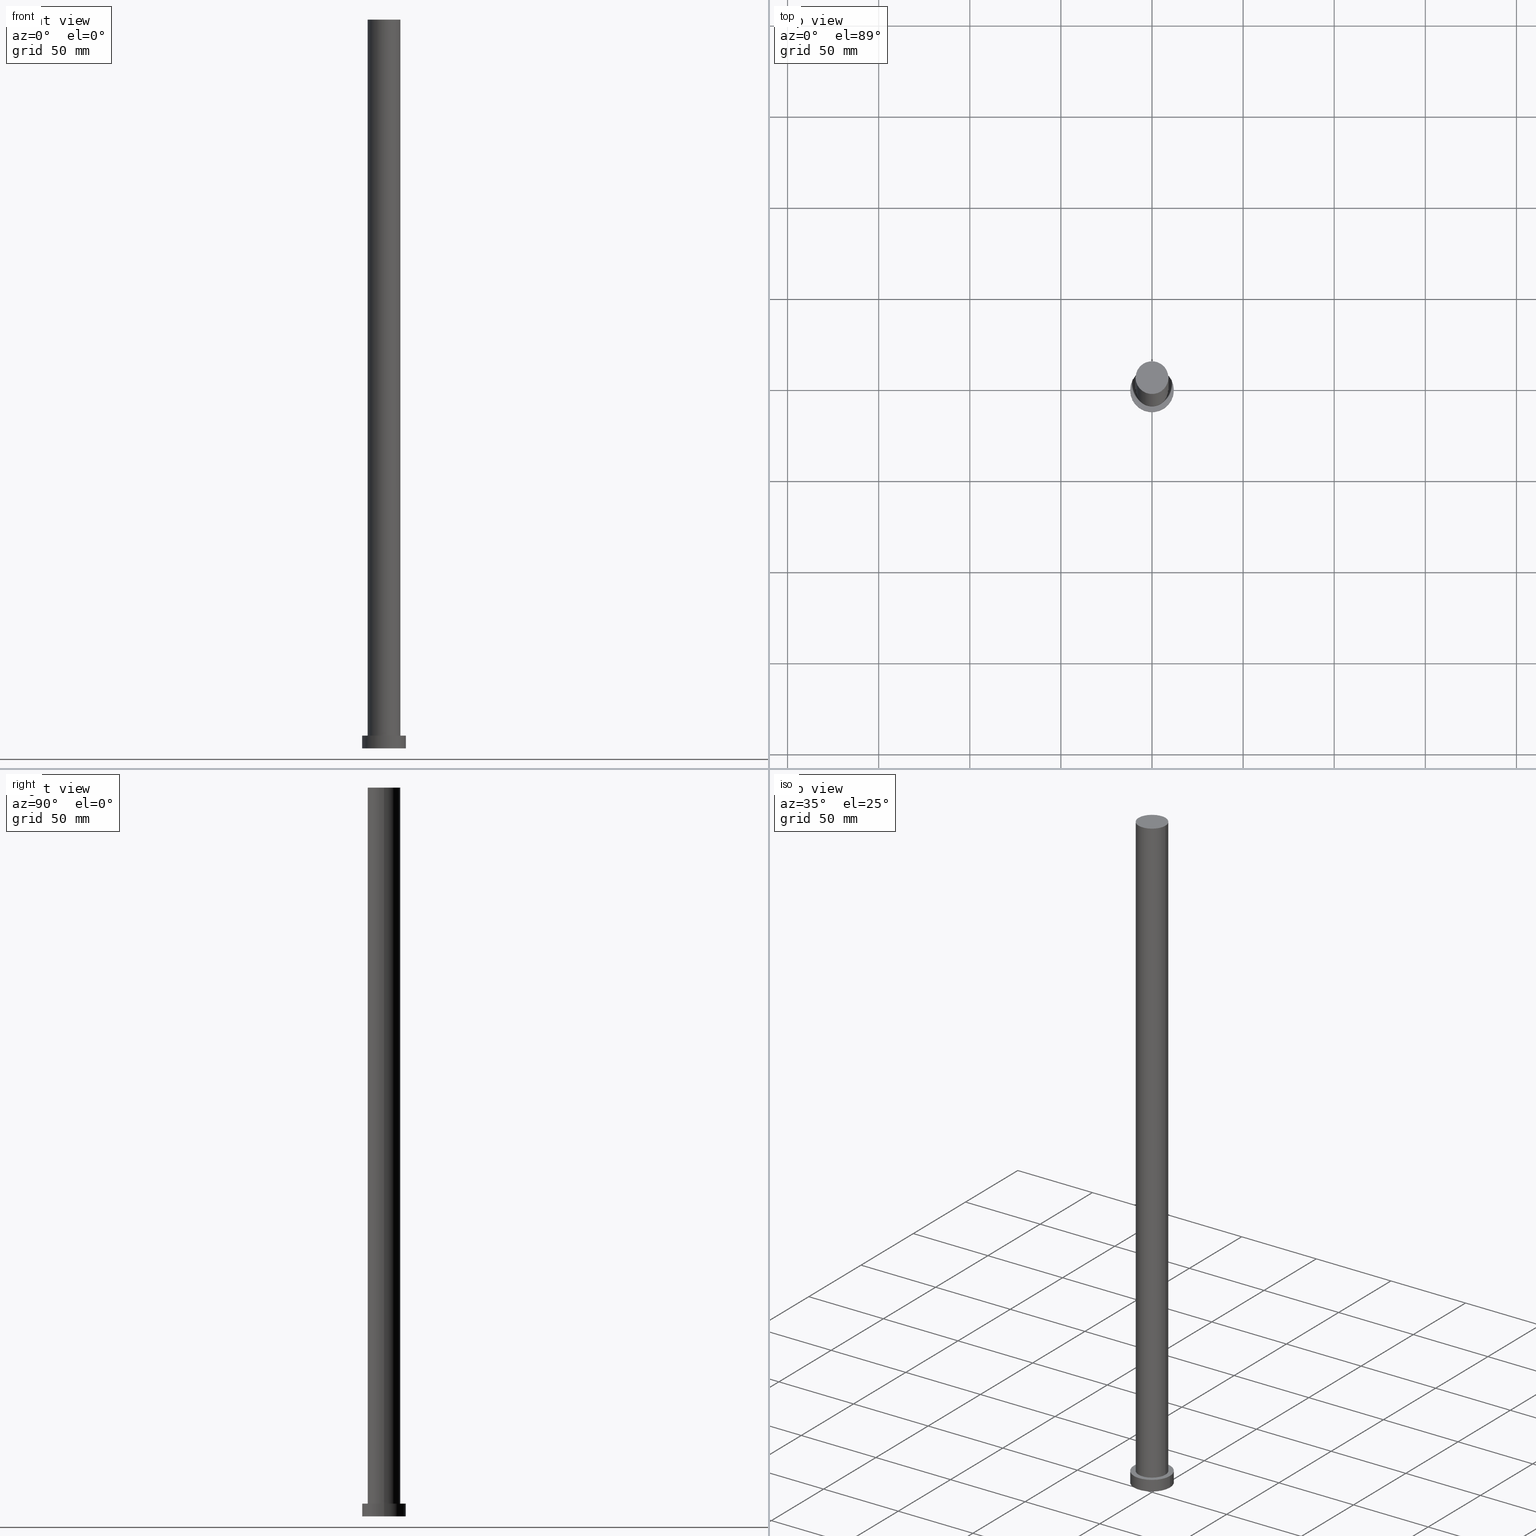
[diagram: canonical four-view strip — front | top / right | iso, engineering-drawing reading convention]
A machine part, canonical four-view strip (front | top / right | iso — engineering-drawing reading convention). The complete STEP part file that produces these views, byte-faithful:
ISO-10303-21;
HEADER;
FILE_DESCRIPTION (( 'STEP AP203' ),
    '1' );
FILE_NAME ('bf28.STEP',
    '2023-02-12T10:34:46',
    ( '' ),
    ( '' ),
    'SwSTEP 2.0',
    'SolidWorks 2019',
    '' );
FILE_SCHEMA (( 'CONFIG_CONTROL_DESIGN' ));
ENDSEC;

DATA;
#1 = ADVANCED_FACE ( 'NONE', ( #8, #108 ), #189, .T. ) ;
#2 = CARTESIAN_POINT ( 'NONE',  ( -9.000000000000000000, 0.000000000000000000, 400.0000000000000000 ) ) ;
#3 = CC_DESIGN_DATE_AND_TIME_ASSIGNMENT ( #157, #117, ( #70 ) ) ;
#4 = ORIENTED_EDGE ( 'NONE', *, *, #131, .T. ) ;
#5 = CIRCLE ( 'NONE', #94, 9.000000000000000000 ) ;
#6 = DIRECTION ( 'NONE',  ( -1.000000000000000000, 0.000000000000000000, 0.000000000000000000 ) ) ;
#7 = EDGE_LOOP ( 'NONE', ( #183, #130, #164, #83 ) ) ;
#8 = FACE_BOUND ( 'NONE', #122, .T. ) ;
#9 = EDGE_CURVE ( 'NONE', #193, #27, #165, .T. ) ;
#10 = CIRCLE ( 'NONE', #50, 9.000000000000000000 ) ;
#11 = CYLINDRICAL_SURFACE ( 'NONE', #232, 9.000000000000000000 ) ;
#12 = APPLICATION_CONTEXT ( 'configuration controlled 3d designs of mechanical parts and assemblies' ) ;
#13 = UNCERTAINTY_MEASURE_WITH_UNIT (LENGTH_MEASURE( 1.000000000000000082E-05 ), #111, 'distance_accuracy_value', 'NONE');
#14 = DIRECTION ( 'NONE',  ( -0.000000000000000000, -0.000000000000000000, -1.000000000000000000 ) ) ;
#15 = ORIENTED_EDGE ( 'NONE', *, *, #44, .T. ) ;
#16 = APPLICATION_PROTOCOL_DEFINITION ( 'international standard', 'config_control_design', 1994, #28 ) ;
#17 = ADVANCED_FACE ( 'NONE', ( #170 ), #247, .T. ) ;
#18 = AXIS2_PLACEMENT_3D ( 'NONE', #59, #140, #77 ) ;
#19 = PERSON_AND_ORGANIZATION ( #103, #40 ) ;
#20 = DIRECTION ( 'NONE',  ( 1.000000000000000000, 0.000000000000000000, 0.000000000000000000 ) ) ;
#21 = LOCAL_TIME ( 11, 34, 46.00000000000000000, #194 ) ;
#22 = APPLICATION_PROTOCOL_DEFINITION ( 'international standard', 'config_control_design', 1994, #12 ) ;
#23 = PERSON_AND_ORGANIZATION ( #103, #40 ) ;
#24 = CALENDAR_DATE ( 2023, 12, 2 ) ;
#25 = APPROVAL_PERSON_ORGANIZATION ( #23, #89, #217 ) ;
#26 = LINE ( 'NONE', #2, #241 ) ;
#27 = VERTEX_POINT ( 'NONE', #213 ) ;
#28 = APPLICATION_CONTEXT ( 'configuration controlled 3d designs of mechanical parts and assemblies' ) ;
#29 = ORIENTED_EDGE ( 'NONE', *, *, #131, .F. ) ;
#30 = AXIS2_PLACEMENT_3D ( 'NONE', #160, #115, #195 ) ;
#31 = CARTESIAN_POINT ( 'NONE',  ( 0.000000000000000000, 0.000000000000000000, 400.0000000000000000 ) ) ;
#32 = ORIENTED_EDGE ( 'NONE', *, *, #33, .F. ) ;
#33 = EDGE_CURVE ( 'NONE', #207, #145, #10, .T. ) ;
#34 = VERTEX_POINT ( 'NONE', #202 ) ;
#35 = CIRCLE ( 'NONE', #45, 9.000000000000000000 ) ;
#36 = CALENDAR_DATE ( 2023, 12, 2 ) ;
#37 = DIRECTION ( 'NONE',  ( 0.000000000000000000, 0.000000000000000000, 1.000000000000000000 ) ) ;
#38 = COORDINATED_UNIVERSAL_TIME_OFFSET ( 1, 0, .AHEAD. ) ;
#39 = APPROVAL_DATE_TIME ( #80, #188 ) ;
#40 = ORGANIZATION ( 'NEUR�EN�', 'NEUR�EN�', '' ) ;
#41 = EDGE_CURVE ( 'NONE', #34, #150, #141, .T. ) ;
#42 = CARTESIAN_POINT ( 'NONE',  ( 12.00000000000000178, 1.469576158976824144E-15, 7.000000000000000000 ) ) ;
#43 = ORIENTED_EDGE ( 'NONE', *, *, #41, .T. ) ;
#44 = EDGE_CURVE ( 'NONE', #185, #34, #233, .T. ) ;
#45 = AXIS2_PLACEMENT_3D ( 'NONE', #120, #204, #73 ) ;
#46 = AXIS2_PLACEMENT_3D ( 'NONE', #93, #226, #147 ) ;
#47 = CARTESIAN_POINT ( 'NONE',  ( 0.000000000000000000, 0.000000000000000000, 400.0000000000000000 ) ) ;
#48 = DIRECTION ( 'NONE',  ( -0.000000000000000000, -0.000000000000000000, -1.000000000000000000 ) ) ;
#49 = PRODUCT_RELATED_PRODUCT_CATEGORY ( 'detail', '', ( #225 ) ) ;
#50 = AXIS2_PLACEMENT_3D ( 'NONE', #155, #198, #154 ) ;
#51 = CC_DESIGN_SECURITY_CLASSIFICATION ( #248, ( #148 ) ) ;
#52 = PERSON_AND_ORGANIZATION_ROLE ( 'design_owner' ) ;
#53 = MECHANICAL_CONTEXT ( 'NONE', #12, 'mechanical' ) ;
#54 = CARTESIAN_POINT ( 'NONE',  ( -9.000000000000000000, 0.000000000000000000, 7.000000000000000000 ) ) ;
#55 = CALENDAR_DATE ( 2023, 12, 2 ) ;
#56 = EDGE_CURVE ( 'NONE', #185, #124, #156, .T. ) ;
#57 = CARTESIAN_POINT ( 'NONE',  ( -12.00000000000000178, 0.000000000000000000, 7.000000000000000000 ) ) ;
#58 = APPROVAL_ROLE ( '' ) ;
#59 = CARTESIAN_POINT ( 'NONE',  ( 0.000000000000000000, 0.000000000000000000, 0.000000000000000000 ) ) ;
#60 = EDGE_CURVE ( 'NONE', #124, #185, #125, .T. ) ;
#61 = DIRECTION ( 'NONE',  ( 0.000000000000000000, 0.000000000000000000, 1.000000000000000000 ) ) ;
#62 = AXIS2_PLACEMENT_3D ( 'NONE', #235, #251, #114 ) ;
#63 = EDGE_LOOP ( 'NONE', ( #88, #106, #4, #205 ) ) ;
#64 = SHAPE_DEFINITION_REPRESENTATION ( #92, #203 ) ;
#65 = DIRECTION ( 'NONE',  ( 1.000000000000000000, 0.000000000000000000, 0.000000000000000000 ) ) ;
#66 = ORIENTED_EDGE ( 'NONE', *, *, #33, .T. ) ;
#67 = CLOSED_SHELL ( 'NONE', ( #17, #223, #206, #1, #143, #181, #162 ) ) ;
#68 = AXIS2_PLACEMENT_3D ( 'NONE', #242, #61, #65 ) ;
#69 = DIRECTION ( 'NONE',  ( -1.000000000000000000, 0.000000000000000000, 0.000000000000000000 ) ) ;
#70 = PRODUCT_DEFINITION ( 'NEZN�M�', '', #148, #137 ) ;
#71 = CYLINDRICAL_SURFACE ( 'NONE', #104, 12.00000000000000178 ) ;
#72 = LOCAL_TIME ( 11, 34, 46.00000000000000000, #139 ) ;
#73 = DIRECTION ( 'NONE',  ( 1.000000000000000000, 0.000000000000000000, 0.000000000000000000 ) ) ;
#74 = ORIENTED_EDGE ( 'NONE', *, *, #9, .F. ) ;
#75 = DATE_AND_TIME ( #24, #135 ) ;
#76 = PERSON_AND_ORGANIZATION ( #103, #40 ) ;
#77 = DIRECTION ( 'NONE',  ( 1.000000000000000000, 0.000000000000000000, -0.000000000000000000 ) ) ;
#78 = PERSON_AND_ORGANIZATION_ROLE ( 'design_supplier' ) ;
#79 = CARTESIAN_POINT ( 'NONE',  ( 0.000000000000000000, 0.000000000000000000, 0.000000000000000000 ) ) ;
#80 = DATE_AND_TIME ( #138, #186 ) ;
#81 = DIRECTION ( 'NONE',  ( -0.000000000000000000, -0.000000000000000000, -1.000000000000000000 ) ) ;
#82 = CC_DESIGN_PERSON_AND_ORGANIZATION_ASSIGNMENT ( #177, #113, ( #148 ) ) ;
#83 = ORIENTED_EDGE ( 'NONE', *, *, #44, .F. ) ;
#84 = AXIS2_PLACEMENT_3D ( 'NONE', #79, #37, #176 ) ;
#85 = EDGE_CURVE ( 'NONE', #145, #207, #5, .T. ) ;
#86 = EDGE_LOOP ( 'NONE', ( #191, #163 ) ) ;
#87 =( NAMED_UNIT ( * ) PLANE_ANGLE_UNIT ( ) SI_UNIT ( $, .RADIAN. ) );
#88 = ORIENTED_EDGE ( 'NONE', *, *, #234, .F. ) ;
#89 = APPROVAL ( #133, 'NEUR�EN�' ) ;
#90 = CC_DESIGN_APPROVAL ( #121, ( #248 ) ) ;
#91 = EDGE_LOOP ( 'NONE', ( #244, #172 ) ) ;
#92 = PRODUCT_DEFINITION_SHAPE ( 'NONE', 'NONE',  #70 ) ;
#93 = CARTESIAN_POINT ( 'NONE',  ( 0.000000000000000000, 0.000000000000000000, 7.000000000000000000 ) ) ;
#94 = AXIS2_PLACEMENT_3D ( 'NONE', #180, #178, #20 ) ;
#95 = APPROVAL_STATUS ( 'not_yet_approved' ) ;
#96 = CARTESIAN_POINT ( 'NONE',  ( 12.00000000000000178, 1.469576158976824144E-15, 7.000000000000000000 ) ) ;
#97 = CC_DESIGN_PERSON_AND_ORGANIZATION_ASSIGNMENT ( #76, #179, ( #70 ) ) ;
#98 = APPROVAL_DATE_TIME ( #173, #89 ) ;
#99 = PERSON_AND_ORGANIZATION_ROLE ( 'classification_officer' ) ;
#100 = CC_DESIGN_PERSON_AND_ORGANIZATION_ASSIGNMENT ( #255, #78, ( #148 ) ) ;
#101 = DATE_TIME_ROLE ( 'classification_date' ) ;
#102 = MANIFOLD_SOLID_BREP ( 'P�idat vysunut�m3', #67 ) ;
#103 = PERSON ( 'NEUR�EN�', 'NEUR�EN�', 'NEUR�EN�', ('NEUR�EN�'), ('NEUR�EN�'), ('NEUR�EN�') ) ;
#104 = AXIS2_PLACEMENT_3D ( 'NONE', #230, #14, #6 ) ;
#105 = ORIENTED_EDGE ( 'NONE', *, *, #60, .T. ) ;
#106 = ORIENTED_EDGE ( 'NONE', *, *, #158, .F. ) ;
#107 = VECTOR ( 'NONE', #144, 1000.000000000000000 ) ;
#108 = FACE_OUTER_BOUND ( 'NONE', #250, .T. ) ;
#109 = FACE_OUTER_BOUND ( 'NONE', #7, .T. ) ;
#110 = CARTESIAN_POINT ( 'NONE',  ( 0.000000000000000000, 0.000000000000000000, 7.000000000000000000 ) ) ;
#111 =( LENGTH_UNIT ( ) NAMED_UNIT ( * ) SI_UNIT ( .MILLI., .METRE. ) );
#112 = ORIENTED_EDGE ( 'NONE', *, *, #56, .T. ) ;
#113 = PERSON_AND_ORGANIZATION_ROLE ( 'creator' ) ;
#114 = DIRECTION ( 'NONE',  ( 1.000000000000000000, 0.000000000000000000, 0.000000000000000000 ) ) ;
#115 = DIRECTION ( 'NONE',  ( 0.000000000000000000, 0.000000000000000000, 1.000000000000000000 ) ) ;
#116 = DIRECTION ( 'NONE',  ( -0.000000000000000000, -0.000000000000000000, -1.000000000000000000 ) ) ;
#117 = DATE_TIME_ROLE ( 'creation_date' ) ;
#118 = AXIS2_PLACEMENT_3D ( 'NONE', #136, #236, #199 ) ;
#119 = APPROVAL_DATE_TIME ( #221, #121 ) ;
#120 = CARTESIAN_POINT ( 'NONE',  ( 0.000000000000000000, 0.000000000000000000, 400.0000000000000000 ) ) ;
#121 = APPROVAL ( #161, 'NEUR�EN�' ) ;
#122 = EDGE_LOOP ( 'NONE', ( #220, #32 ) ) ;
#123 = AXIS2_PLACEMENT_3D ( 'NONE', #47, #126, #211 ) ;
#124 = VERTEX_POINT ( 'NONE', #96 ) ;
#125 = CIRCLE ( 'NONE', #118, 12.00000000000000178 ) ;
#126 = DIRECTION ( 'NONE',  ( 0.000000000000000000, 0.000000000000000000, 1.000000000000000000 ) ) ;
#127 = DIRECTION ( 'NONE',  ( 1.000000000000000000, 0.000000000000000000, -0.000000000000000000 ) ) ;
#128 = CC_DESIGN_PERSON_AND_ORGANIZATION_ASSIGNMENT ( #132, #52, ( #225 ) ) ;
#129 = DIRECTION ( 'NONE',  ( -1.000000000000000000, 0.000000000000000000, 0.000000000000000000 ) ) ;
#130 = ORIENTED_EDGE ( 'NONE', *, *, #152, .T. ) ;
#131 = EDGE_CURVE ( 'NONE', #27, #145, #26, .T. ) ;
#132 = PERSON_AND_ORGANIZATION ( #103, #40 ) ;
#133 = APPROVAL_STATUS ( 'not_yet_approved' ) ;
#134 = SECURITY_CLASSIFICATION_LEVEL ( 'unclassified' ) ;
#135 = LOCAL_TIME ( 11, 34, 46.00000000000000000, #238 ) ;
#136 = CARTESIAN_POINT ( 'NONE',  ( 0.000000000000000000, 0.000000000000000000, 7.000000000000000000 ) ) ;
#137 = DESIGN_CONTEXT ( 'detailed design', #28, 'design' ) ;
#138 = CALENDAR_DATE ( 2023, 12, 2 ) ;
#139 = COORDINATED_UNIVERSAL_TIME_OFFSET ( 1, 0, .AHEAD. ) ;
#140 = DIRECTION ( 'NONE',  ( 0.000000000000000000, 0.000000000000000000, 1.000000000000000000 ) ) ;
#141 = CIRCLE ( 'NONE', #84, 12.00000000000000178 ) ;
#142 = CARTESIAN_POINT ( 'NONE',  ( 12.00000000000000178, 1.469576158976824144E-15, 0.000000000000000000 ) ) ;
#143 = ADVANCED_FACE ( 'NONE', ( #254 ), #240, .F. ) ;
#144 = DIRECTION ( 'NONE',  ( -0.000000000000000000, -0.000000000000000000, -1.000000000000000000 ) ) ;
#145 = VERTEX_POINT ( 'NONE', #54 ) ;
#146 = EDGE_CURVE ( 'NONE', #150, #34, #196, .T. ) ;
#147 = DIRECTION ( 'NONE',  ( 1.000000000000000000, 0.000000000000000000, -0.000000000000000000 ) ) ;
#148 = PRODUCT_DEFINITION_FORMATION_WITH_SPECIFIED_SOURCE ( 'LIBOVOLN�', '', #225, .NOT_KNOWN. ) ;
#149 = CARTESIAN_POINT ( 'NONE',  ( 0.000000000000000000, 0.000000000000000000, 400.0000000000000000 ) ) ;
#150 = VERTEX_POINT ( 'NONE', #142 ) ;
#151 = CARTESIAN_POINT ( 'NONE',  ( 9.000000000000000000, 1.102182119232617714E-15, 400.0000000000000000 ) ) ;
#152 = EDGE_CURVE ( 'NONE', #124, #150, #182, .T. ) ;
#153 = CALENDAR_DATE ( 2023, 12, 2 ) ;
#154 = DIRECTION ( 'NONE',  ( 1.000000000000000000, 0.000000000000000000, 0.000000000000000000 ) ) ;
#155 = CARTESIAN_POINT ( 'NONE',  ( 0.000000000000000000, 0.000000000000000000, 7.000000000000000000 ) ) ;
#156 = CIRCLE ( 'NONE', #30, 12.00000000000000178 ) ;
#157 = DATE_AND_TIME ( #36, #21 ) ;
#158 = EDGE_CURVE ( 'NONE', #27, #193, #35, .T. ) ;
#159 = APPROVAL_PERSON_ORGANIZATION ( #239, #121, #58 ) ;
#160 = CARTESIAN_POINT ( 'NONE',  ( 0.000000000000000000, 0.000000000000000000, 7.000000000000000000 ) ) ;
#161 = APPROVAL_STATUS ( 'not_yet_approved' ) ;
#162 = ADVANCED_FACE ( 'NONE', ( #245 ), #224, .T. ) ;
#163 = ORIENTED_EDGE ( 'NONE', *, *, #146, .F. ) ;
#164 = ORIENTED_EDGE ( 'NONE', *, *, #146, .T. ) ;
#165 = CIRCLE ( 'NONE', #123, 9.000000000000000000 ) ;
#166 =( NAMED_UNIT ( * ) SI_UNIT ( $, .STERADIAN. ) SOLID_ANGLE_UNIT ( ) );
#167 = CC_DESIGN_DATE_AND_TIME_ASSIGNMENT ( #75, #101, ( #248 ) ) ;
#168 = CARTESIAN_POINT ( 'NONE',  ( 9.000000000000000000, 1.102182119232617714E-15, 7.000000000000000000 ) ) ;
#169 = AXIS2_PLACEMENT_3D ( 'NONE', #149, #48, #129 ) ;
#170 = FACE_OUTER_BOUND ( 'NONE', #243, .T. ) ;
#171 = ORIENTED_EDGE ( 'NONE', *, *, #152, .F. ) ;
#172 = ORIENTED_EDGE ( 'NONE', *, *, #9, .T. ) ;
#173 = DATE_AND_TIME ( #55, #201 ) ;
#174 =( GEOMETRIC_REPRESENTATION_CONTEXT ( 3 ) GLOBAL_UNCERTAINTY_ASSIGNED_CONTEXT ( ( #13 ) ) GLOBAL_UNIT_ASSIGNED_CONTEXT ( ( #111, #87, #166 ) ) REPRESENTATION_CONTEXT ( 'NONE', 'WORKASPACE' ) );
#175 = APPROVAL_ROLE ( '' ) ;
#176 = DIRECTION ( 'NONE',  ( 1.000000000000000000, 0.000000000000000000, 0.000000000000000000 ) ) ;
#177 = PERSON_AND_ORGANIZATION ( #103, #40 ) ;
#178 = DIRECTION ( 'NONE',  ( 0.000000000000000000, 0.000000000000000000, 1.000000000000000000 ) ) ;
#179 = PERSON_AND_ORGANIZATION_ROLE ( 'creator' ) ;
#180 = CARTESIAN_POINT ( 'NONE',  ( 0.000000000000000000, 0.000000000000000000, 7.000000000000000000 ) ) ;
#181 = ADVANCED_FACE ( 'NONE', ( #208 ), #11, .T. ) ;
#182 = LINE ( 'NONE', #42, #107 ) ;
#183 = ORIENTED_EDGE ( 'NONE', *, *, #60, .F. ) ;
#184 = CARTESIAN_POINT ( 'NONE',  ( -12.00000000000000178, 0.000000000000000000, 7.000000000000000000 ) ) ;
#185 = VERTEX_POINT ( 'NONE', #184 ) ;
#186 = LOCAL_TIME ( 11, 34, 46.00000000000000000, #253 ) ;
#187 = DIRECTION ( 'NONE',  ( -0.000000000000000000, -0.000000000000000000, -1.000000000000000000 ) ) ;
#188 = APPROVAL ( #95, 'NEUR�EN�' ) ;
#189 = PLANE ( 'NONE',  #46 ) ;
#190 = DIRECTION ( 'NONE',  ( -1.000000000000000000, 0.000000000000000000, 0.000000000000000000 ) ) ;
#191 = ORIENTED_EDGE ( 'NONE', *, *, #41, .F. ) ;
#192 = DIRECTION ( 'NONE',  ( -0.000000000000000000, -0.000000000000000000, -1.000000000000000000 ) ) ;
#193 = VERTEX_POINT ( 'NONE', #151 ) ;
#194 = COORDINATED_UNIVERSAL_TIME_OFFSET ( 1, 0, .AHEAD. ) ;
#195 = DIRECTION ( 'NONE',  ( 1.000000000000000000, 0.000000000000000000, 0.000000000000000000 ) ) ;
#196 = CIRCLE ( 'NONE', #68, 12.00000000000000178 ) ;
#197 = CC_DESIGN_APPROVAL ( #89, ( #148 ) ) ;
#198 = DIRECTION ( 'NONE',  ( 0.000000000000000000, 0.000000000000000000, 1.000000000000000000 ) ) ;
#199 = DIRECTION ( 'NONE',  ( 1.000000000000000000, 0.000000000000000000, 0.000000000000000000 ) ) ;
#200 = PERSON_AND_ORGANIZATION ( #103, #40 ) ;
#201 = LOCAL_TIME ( 11, 34, 46.00000000000000000, #38 ) ;
#202 = CARTESIAN_POINT ( 'NONE',  ( -12.00000000000000178, 0.000000000000000000, 0.000000000000000000 ) ) ;
#203 = ADVANCED_BREP_SHAPE_REPRESENTATION ( 'bf28', ( #102, #62 ), #174 ) ;
#204 = DIRECTION ( 'NONE',  ( 0.000000000000000000, 0.000000000000000000, 1.000000000000000000 ) ) ;
#205 = ORIENTED_EDGE ( 'NONE', *, *, #85, .T. ) ;
#206 = ADVANCED_FACE ( 'NONE', ( #249 ), #210, .T. ) ;
#207 = VERTEX_POINT ( 'NONE', #168 ) ;
#208 = FACE_OUTER_BOUND ( 'NONE', #63, .T. ) ;
#209 = ORIENTED_EDGE ( 'NONE', *, *, #234, .T. ) ;
#210 = CYLINDRICAL_SURFACE ( 'NONE', #237, 12.00000000000000178 ) ;
#211 = DIRECTION ( 'NONE',  ( 1.000000000000000000, 0.000000000000000000, 0.000000000000000000 ) ) ;
#212 = CARTESIAN_POINT ( 'NONE',  ( 9.000000000000000000, 1.102182119232617714E-15, 400.0000000000000000 ) ) ;
#213 = CARTESIAN_POINT ( 'NONE',  ( -9.000000000000000000, 0.000000000000000000, 400.0000000000000000 ) ) ;
#214 = DIRECTION ( 'NONE',  ( 0.000000000000000000, 0.000000000000000000, 1.000000000000000000 ) ) ;
#215 = DIRECTION ( 'NONE',  ( -0.000000000000000000, -0.000000000000000000, -1.000000000000000000 ) ) ;
#216 = EDGE_LOOP ( 'NONE', ( #171, #231, #15, #43 ) ) ;
#217 = APPROVAL_ROLE ( '' ) ;
#218 = CC_DESIGN_PERSON_AND_ORGANIZATION_ASSIGNMENT ( #200, #99, ( #248 ) ) ;
#219 = AXIS2_PLACEMENT_3D ( 'NONE', #31, #214, #127 ) ;
#220 = ORIENTED_EDGE ( 'NONE', *, *, #85, .F. ) ;
#221 = DATE_AND_TIME ( #153, #72 ) ;
#222 = CC_DESIGN_APPROVAL ( #188, ( #70 ) ) ;
#223 = ADVANCED_FACE ( 'NONE', ( #109 ), #71, .T. ) ;
#224 = PLANE ( 'NONE',  #219 ) ;
#225 = PRODUCT ( 'bf28', 'bf28', '', ( #53 ) ) ;
#226 = DIRECTION ( 'NONE',  ( 0.000000000000000000, 0.000000000000000000, 1.000000000000000000 ) ) ;
#227 = APPROVAL_PERSON_ORGANIZATION ( #19, #188, #175 ) ;
#228 = CARTESIAN_POINT ( 'NONE',  ( 0.000000000000000000, 0.000000000000000000, 400.0000000000000000 ) ) ;
#229 = VECTOR ( 'NONE', #116, 1000.000000000000000 ) ;
#230 = CARTESIAN_POINT ( 'NONE',  ( 0.000000000000000000, 0.000000000000000000, 7.000000000000000000 ) ) ;
#231 = ORIENTED_EDGE ( 'NONE', *, *, #56, .F. ) ;
#232 = AXIS2_PLACEMENT_3D ( 'NONE', #228, #215, #190 ) ;
#233 = LINE ( 'NONE', #57, #229 ) ;
#234 = EDGE_CURVE ( 'NONE', #193, #207, #246, .T. ) ;
#235 = CARTESIAN_POINT ( 'NONE',  ( 0.000000000000000000, 0.000000000000000000, 0.000000000000000000 ) ) ;
#236 = DIRECTION ( 'NONE',  ( 0.000000000000000000, 0.000000000000000000, 1.000000000000000000 ) ) ;
#237 = AXIS2_PLACEMENT_3D ( 'NONE', #110, #192, #69 ) ;
#238 = COORDINATED_UNIVERSAL_TIME_OFFSET ( 1, 0, .AHEAD. ) ;
#239 = PERSON_AND_ORGANIZATION ( #103, #40 ) ;
#240 = PLANE ( 'NONE',  #18 ) ;
#241 = VECTOR ( 'NONE', #81, 1000.000000000000000 ) ;
#242 = CARTESIAN_POINT ( 'NONE',  ( 0.000000000000000000, 0.000000000000000000, 0.000000000000000000 ) ) ;
#243 = EDGE_LOOP ( 'NONE', ( #74, #209, #66, #29 ) ) ;
#244 = ORIENTED_EDGE ( 'NONE', *, *, #158, .T. ) ;
#245 = FACE_OUTER_BOUND ( 'NONE', #91, .T. ) ;
#246 = LINE ( 'NONE', #212, #252 ) ;
#247 = CYLINDRICAL_SURFACE ( 'NONE', #169, 9.000000000000000000 ) ;
#248 = SECURITY_CLASSIFICATION ( '', '', #134 ) ;
#249 = FACE_OUTER_BOUND ( 'NONE', #216, .T. ) ;
#250 = EDGE_LOOP ( 'NONE', ( #112, #105 ) ) ;
#251 = DIRECTION ( 'NONE',  ( 0.000000000000000000, 0.000000000000000000, 1.000000000000000000 ) ) ;
#252 = VECTOR ( 'NONE', #187, 1000.000000000000000 ) ;
#253 = COORDINATED_UNIVERSAL_TIME_OFFSET ( 1, 0, .AHEAD. ) ;
#254 = FACE_OUTER_BOUND ( 'NONE', #86, .T. ) ;
#255 = PERSON_AND_ORGANIZATION ( #103, #40 ) ;
ENDSEC;
END-ISO-10303-21;
